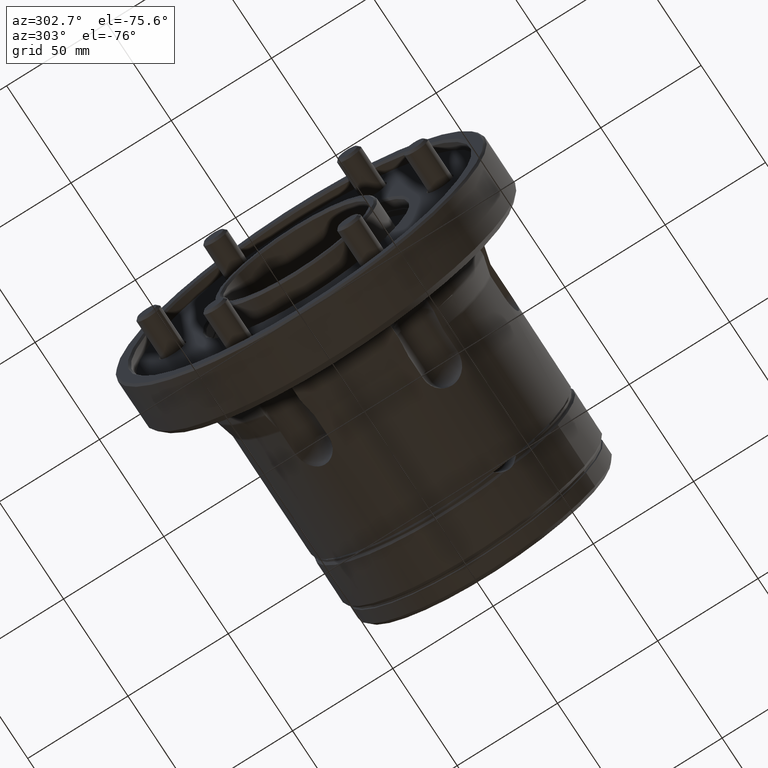
[diagram: clean part render]
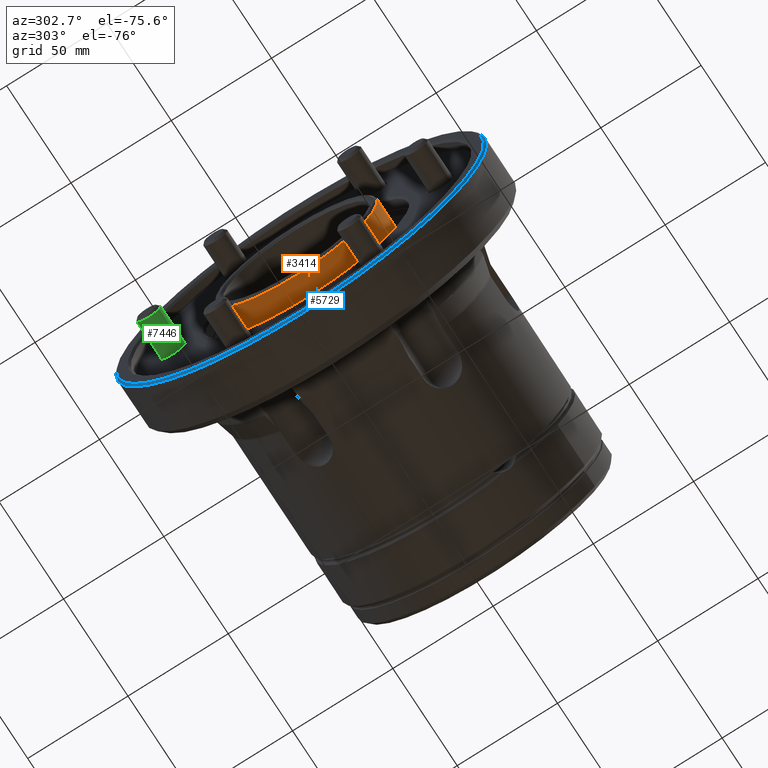
[diagram: same view with three faces highlighted in distinct colors, each labeled with its STEP entity id]
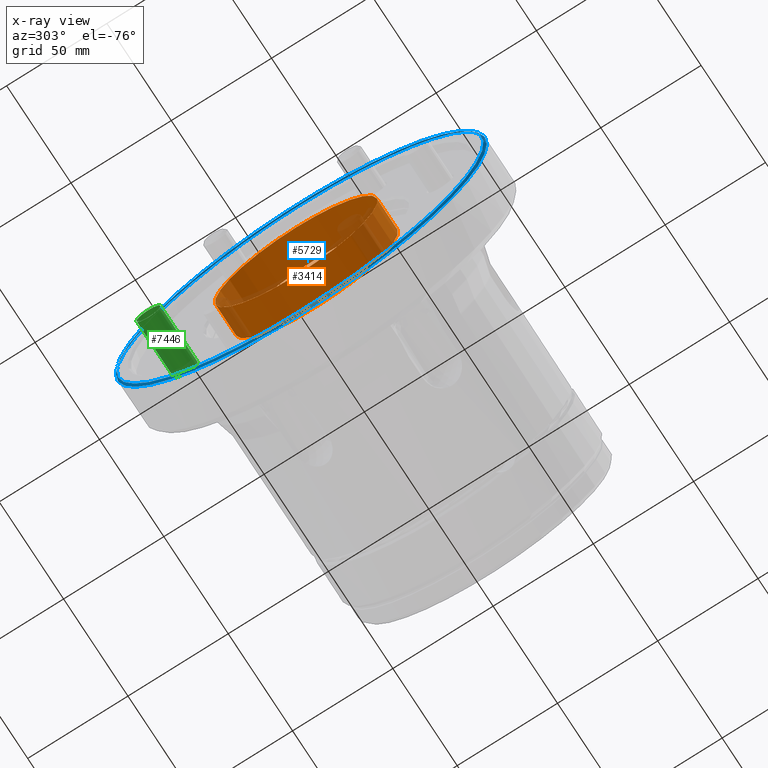
[diagram: x-ray of the same camera — body ghosted, the three highlighted faces saturated]
A machine part, auxiliary view with three faces highlighted in distinct colors.
The next image is the same camera in x-ray (body ghosted, the three faces saturated) — at least one of them is partly hidden behind the body in this view.
Their STEP definitions:

[orange] entity #3414 — the highlighted cylindrical surface (bore or boss wall) has radius 40.5 mm, axis along (-1, 0, 0).
#142 = CIRCLE ( 'NONE', #1171, 40.49999999999999289 ) ;
#1171 = AXIS2_PLACEMENT_3D ( 'NONE', #6656, #4225, #2596 ) ;
#1314 = AXIS2_PLACEMENT_3D ( 'NONE', #7114, #1706, #4084 ) ;
#1432 = DIRECTION ( 'NONE',  ( -1.000000000000000000, -0.0000000000000000000, -0.0000000000000000000 ) ) ;
#1636 = CARTESIAN_POINT ( 'NONE',  ( 17.00000000000000000, 0.0000000000000000000, 40.49999999999999289 ) ) ;
#1706 = DIRECTION ( 'NONE',  ( -1.000000000000000000, -0.0000000000000000000, -0.0000000000000000000 ) ) ;
#2286 = FACE_OUTER_BOUND ( 'NONE', #6683, .T. ) ;
#2444 = EDGE_CURVE ( 'NONE', #4979, #4979, #142, .T. ) ;
#2596 = DIRECTION ( 'NONE',  ( 0.0000000000000000000, 0.0000000000000000000, -1.000000000000000000 ) ) ;
#2970 = ORIENTED_EDGE ( 'NONE', *, *, #5636, .T. ) ;
#2984 = EDGE_LOOP ( 'NONE', ( #5402 ) ) ;
#3315 = CIRCLE ( 'NONE', #7795, 40.49999999999999289 ) ;
#3414 = ADVANCED_FACE ( 'NONE', ( #7727, #2286 ), #4671, .T. ) ;
#3811 = DIRECTION ( 'NONE',  ( 0.0000000000000000000, 0.0000000000000000000, 1.000000000000000000 ) ) ;
#4084 = DIRECTION ( 'NONE',  ( 0.0000000000000000000, 0.0000000000000000000, 1.000000000000000000 ) ) ;
#4225 = DIRECTION ( 'NONE',  ( 1.000000000000000000, 0.0000000000000000000, 0.0000000000000000000 ) ) ;
#4671 = CYLINDRICAL_SURFACE ( 'NONE', #1314, 40.49999999999999289 ) ;
#4979 = VERTEX_POINT ( 'NONE', #7420 ) ;
#5402 = ORIENTED_EDGE ( 'NONE', *, *, #2444, .T. ) ;
#5636 = EDGE_CURVE ( 'NONE', #7043, #7043, #3315, .T. ) ;
#6656 = CARTESIAN_POINT ( 'NONE',  ( 1.000000000000042633, 0.0000000000000000000, 0.0000000000000000000 ) ) ;
#6683 = EDGE_LOOP ( 'NONE', ( #2970 ) ) ;
#6832 = CARTESIAN_POINT ( 'NONE',  ( 17.00000000000000000, 0.0000000000000000000, 0.0000000000000000000 ) ) ;
#7043 = VERTEX_POINT ( 'NONE', #1636 ) ;
#7114 = CARTESIAN_POINT ( 'NONE',  ( 0.0000000000000000000, 0.0000000000000000000, 0.0000000000000000000 ) ) ;
#7420 = CARTESIAN_POINT ( 'NONE',  ( 1.000000000000042633, 0.0000000000000000000, -40.49999999999999289 ) ) ;
#7727 = FACE_OUTER_BOUND ( 'NONE', #2984, .T. ) ;
#7795 = AXIS2_PLACEMENT_3D ( 'NONE', #6832, #1432, #3811 ) ;

[blue] entity #5729 — the highlighted conical surface has half-angle 45 deg.
#122 = EDGE_CURVE ( 'NONE', #2989, #2989, #6260, .T. ) ;
#296 = DIRECTION ( 'NONE',  ( 1.000000000000000000, 0.0000000000000000000, 0.0000000000000000000 ) ) ;
#563 = EDGE_CURVE ( 'NONE', #642, #642, #2189, .T. ) ;
#642 = VERTEX_POINT ( 'NONE', #3029 ) ;
#895 = FACE_OUTER_BOUND ( 'NONE', #1139, .T. ) ;
#1139 = EDGE_LOOP ( 'NONE', ( #4527 ) ) ;
#2189 = CIRCLE ( 'NONE', #6330, 91.50000000000008527 ) ;
#2699 = DIRECTION ( 'NONE',  ( 0.0000000000000000000, 0.0000000000000000000, -1.000000000000000000 ) ) ;
#2989 = VERTEX_POINT ( 'NONE', #5422 ) ;
#2992 = AXIS2_PLACEMENT_3D ( 'NONE', #5723, #296, #2699 ) ;
#3029 = CARTESIAN_POINT ( 'NONE',  ( -4.592425496802570028E-16, 0.0000000000000000000, -91.50000000000008527 ) ) ;
#3284 = FACE_BOUND ( 'NONE', #3321, .T. ) ;
#3321 = EDGE_LOOP ( 'NONE', ( #4588 ) ) ;
#3857 = AXIS2_PLACEMENT_3D ( 'NONE', #6795, #6783, #6775 ) ;
#4527 = ORIENTED_EDGE ( 'NONE', *, *, #122, .F. ) ;
#4588 = ORIENTED_EDGE ( 'NONE', *, *, #563, .F. ) ;
#5222 = DIRECTION ( 'NONE',  ( 0.0000000000000000000, 0.0000000000000000000, -1.000000000000000000 ) ) ;
#5228 = DIRECTION ( 'NONE',  ( -1.000000000000000000, -0.0000000000000000000, -0.0000000000000000000 ) ) ;
#5238 = CARTESIAN_POINT ( 'NONE',  ( -4.592425496802570028E-16, 0.0000000000000000000, 0.0000000000000000000 ) ) ;
#5422 = CARTESIAN_POINT ( 'NONE',  ( 0.9999999999998755440, 0.0000000000000000000, -92.50000000000000000 ) ) ;
#5723 = CARTESIAN_POINT ( 'NONE',  ( -4.592425496802570028E-16, 0.0000000000000000000, 0.0000000000000000000 ) ) ;
#5729 = ADVANCED_FACE ( 'NONE', ( #895, #3284 ), #6418, .T. ) ;
#6260 = CIRCLE ( 'NONE', #3857, 92.50000000000000000 ) ;
#6330 = AXIS2_PLACEMENT_3D ( 'NONE', #5238, #5228, #5222 ) ;
#6418 = CONICAL_SURFACE ( 'NONE', #2992, 91.50000000000008527, 0.7853981633974691512 ) ;
#6775 = DIRECTION ( 'NONE',  ( 0.0000000000000000000, 0.0000000000000000000, -1.000000000000000000 ) ) ;
#6783 = DIRECTION ( 'NONE',  ( 1.000000000000000000, 0.0000000000000000000, 0.0000000000000000000 ) ) ;
#6795 = CARTESIAN_POINT ( 'NONE',  ( 0.9999999999998755440, 0.0000000000000000000, 0.0000000000000000000 ) ) ;

[green] entity #7446 — the highlighted cylindrical surface (bore or boss wall) has radius 6 mm, axis along (1, 0, 0).
#84 = AXIS2_PLACEMENT_3D ( 'NONE', #6661, #6655, #6651 ) ;
#174 = EDGE_CURVE ( 'NONE', #4814, #4814, #7430, .T. ) ;
#870 = VERTEX_POINT ( 'NONE', #3256 ) ;
#1144 = CARTESIAN_POINT ( 'NONE',  ( 12.00000000000000355, 0.0000000000000000000, 0.0000000000000000000 ) ) ;
#1770 = DIRECTION ( 'NONE',  ( -1.000000000000000000, -0.0000000000000000000, -0.0000000000000000000 ) ) ;
#2357 = FACE_OUTER_BOUND ( 'NONE', #5684, .T. ) ;
#2935 = EDGE_LOOP ( 'NONE', ( #5136 ) ) ;
#3256 = CARTESIAN_POINT ( 'NONE',  ( 12.00000000000000355, 0.0000000000000000000, 6.000000000000000000 ) ) ;
#3291 = CIRCLE ( 'NONE', #7768, 6.000000000000000000 ) ;
#3448 = EDGE_CURVE ( 'NONE', #870, #870, #3291, .T. ) ;
#3522 = DIRECTION ( 'NONE',  ( -1.000000000000000000, -0.0000000000000000000, -0.0000000000000000000 ) ) ;
#4148 = DIRECTION ( 'NONE',  ( 0.0000000000000000000, 0.0000000000000000000, 1.000000000000000000 ) ) ;
#4741 = CYLINDRICAL_SURFACE ( 'NONE', #4799, 6.000000000000000000 ) ;
#4799 = AXIS2_PLACEMENT_3D ( 'NONE', #7185, #1770, #4148 ) ;
#4814 = VERTEX_POINT ( 'NONE', #7264 ) ;
#5136 = ORIENTED_EDGE ( 'NONE', *, *, #174, .T. ) ;
#5145 = ORIENTED_EDGE ( 'NONE', *, *, #3448, .F. ) ;
#5684 = EDGE_LOOP ( 'NONE', ( #5145 ) ) ;
#5957 = DIRECTION ( 'NONE',  ( 0.0000000000000000000, 0.0000000000000000000, 1.000000000000000000 ) ) ;
#6651 = DIRECTION ( 'NONE',  ( 0.0000000000000000000, 0.0000000000000000000, 1.000000000000000000 ) ) ;
#6655 = DIRECTION ( 'NONE',  ( -1.000000000000000000, -0.0000000000000000000, -0.0000000000000000000 ) ) ;
#6661 = CARTESIAN_POINT ( 'NONE',  ( 40.79999999999997584, 0.0000000000000000000, 0.0000000000000000000 ) ) ;
#7185 = CARTESIAN_POINT ( 'NONE',  ( 0.0000000000000000000, 0.0000000000000000000, 0.0000000000000000000 ) ) ;
#7264 = CARTESIAN_POINT ( 'NONE',  ( 40.79999999999997584, 0.0000000000000000000, 6.000000000000000000 ) ) ;
#7430 = CIRCLE ( 'NONE', #84, 6.000000000000000000 ) ;
#7446 = ADVANCED_FACE ( 'NONE', ( #7802, #2357 ), #4741, .T. ) ;
#7768 = AXIS2_PLACEMENT_3D ( 'NONE', #1144, #3522, #5957 ) ;
#7802 = FACE_OUTER_BOUND ( 'NONE', #2935, .T. ) ;